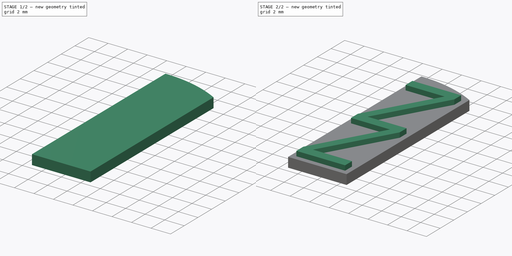
[diagram: build sequence overview — one tinted view per stage of 2, left to right]
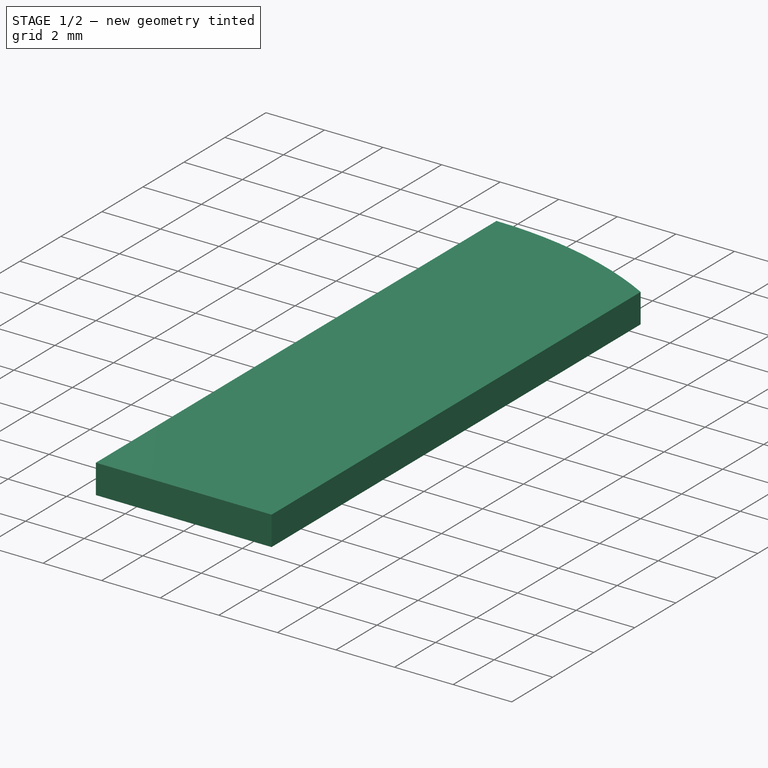
[diagram: stage 1 of 2 — iso view after this stage's code; geometry added in this stage tinted green]
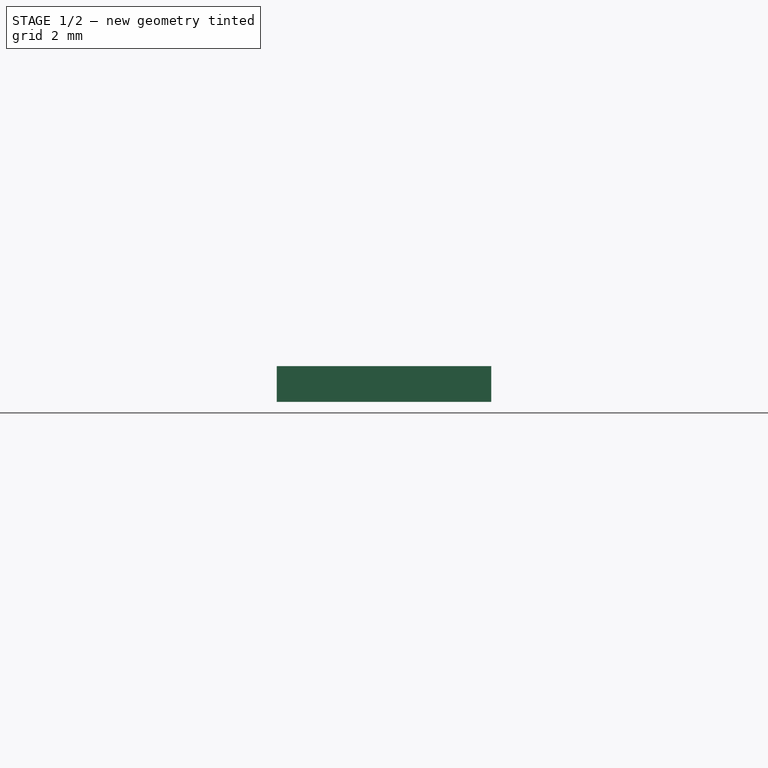
[diagram: stage 1 of 2 — front view after this stage's code; geometry added in this stage tinted green]
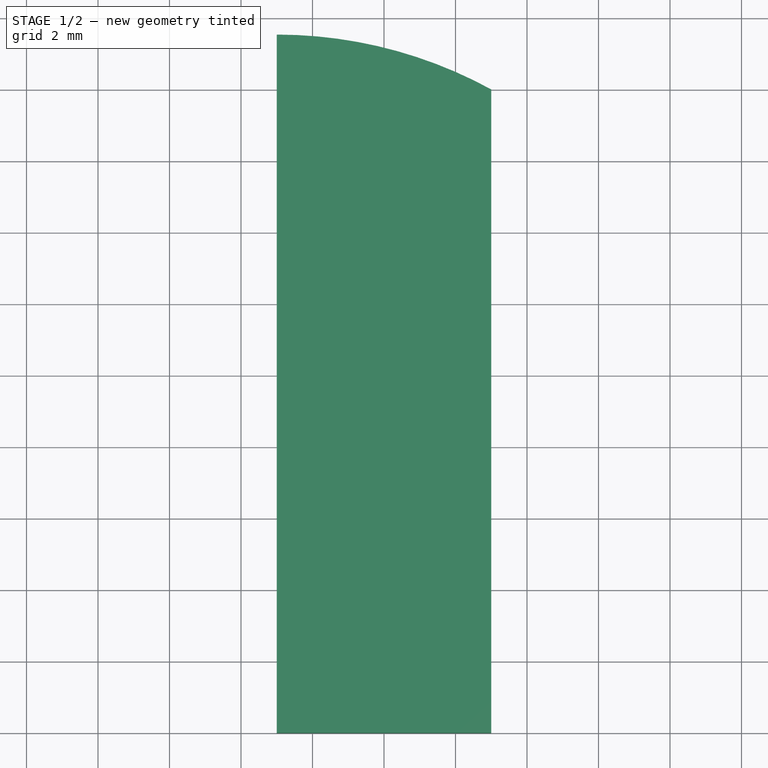
[diagram: stage 1 of 2 — top view after this stage's code; geometry added in this stage tinted green]
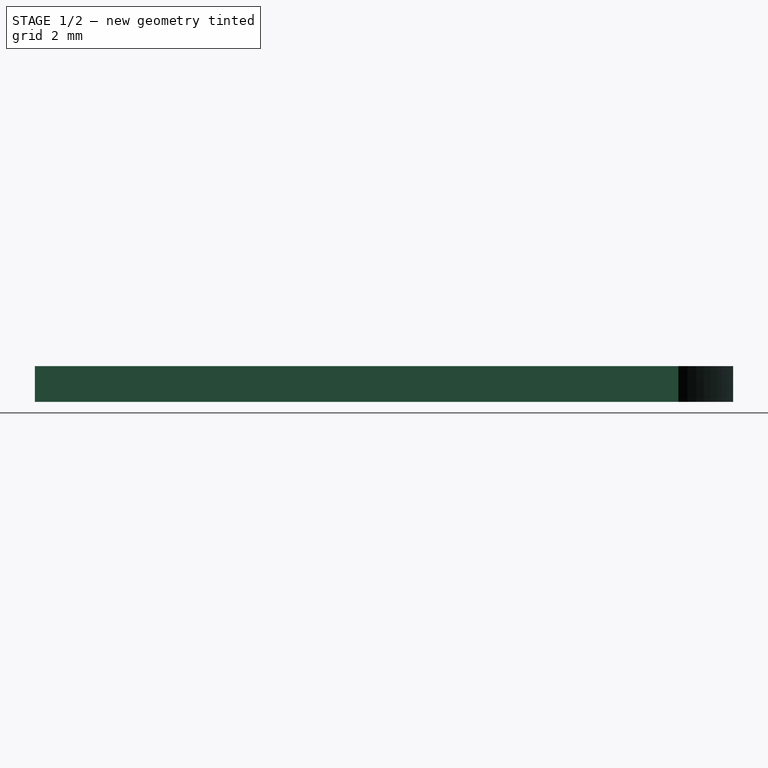
[diagram: stage 1 of 2 — right view after this stage's code; geometry added in this stage tinted green]
FCSTD DOCUMENT  (FreeCAD 0.16R6698 (Git))
Label: 1_2_Volet_Porte_Fenetre_Gauche
License: All rights reserved
LicenseURL: http://fr.wikipedia.org/wiki/<copyright redacted>
objects: Sketcher::SketchObject×2, PartDesign::Pad×2
note: 6 computed .brp shape members not serialized (recipe doc carries the construction recipe); baked Part::Feature solids carry a one-line shape summary decoded from their .brp

FEATURE [Sketcher::SketchObject] Sketch
  sketch-geometry (4):
    g0: LineSegment StartX=-3 StartY=-16 StartZ=0 EndX=3 EndY=-16 EndZ=0
    g1: LineSegment StartX=-3 StartY=-16 StartZ=0 EndX=-3 EndY=3.53414 EndZ=0
    g2: LineSegment StartX=3 StartY=-16 StartZ=0 EndX=3 EndY=2 EndZ=0
    g3: ArcOfCircle CenterX=-3 CenterY=-8.96586 CenterZ=0 NormalX=0 NormalY=0 NormalZ=1 Radius=12.5 StartAngle=1.07014 EndAngle=1.5708
  constraints (13):
    c: Horizontal(g0)
    c: Coincident(g1,g0)
    c: Vertical(g1)
    c: DistanceX(g0,g0) = 6
    c: Coincident(g2,g0)
    c: Vertical(g2)
    c: PointOnObject(g3,g1)
    c: Coincident(g3,g2)
    c: Coincident(g3,g1)
    c: DistanceY(g0,g-1) = 16
    c: DistanceY(g0,g2) = 18
    c: Radius(g3) = 12.5
    c: Symmetric(g0,g0,g-2)
FEATURE [PartDesign::Pad] Pad
  Length = 1
  Length2 = 100
  Sketch = -> Sketch
  Type = 0
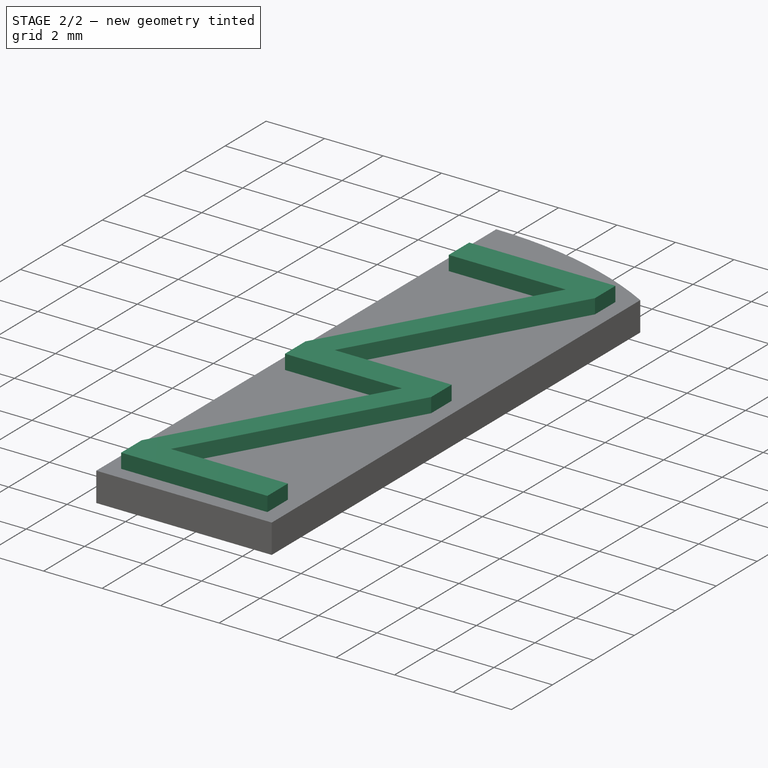
[diagram: stage 2 of 2 — iso view after this stage's code; geometry added in this stage tinted green]
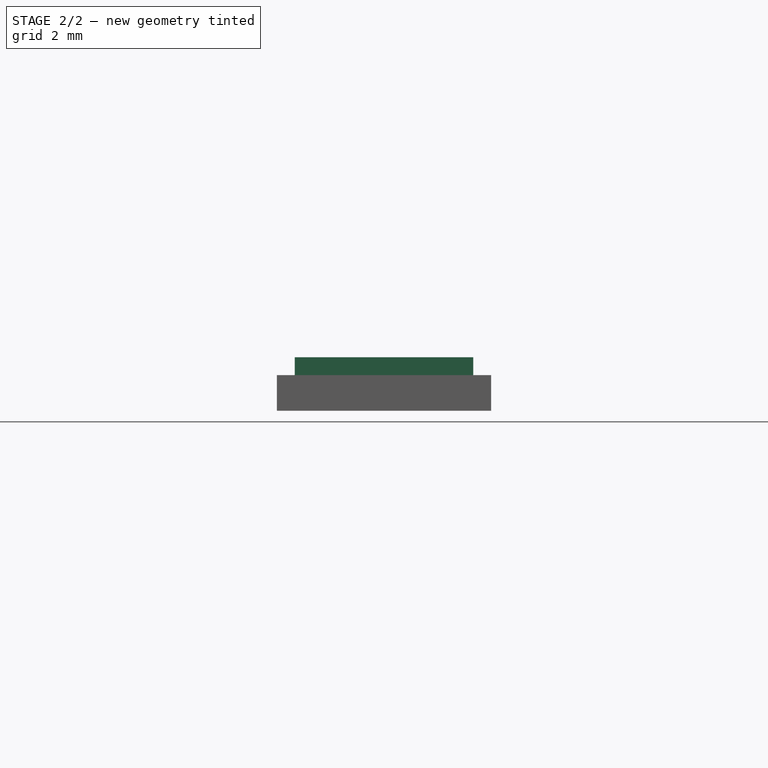
[diagram: stage 2 of 2 — front view after this stage's code; geometry added in this stage tinted green]
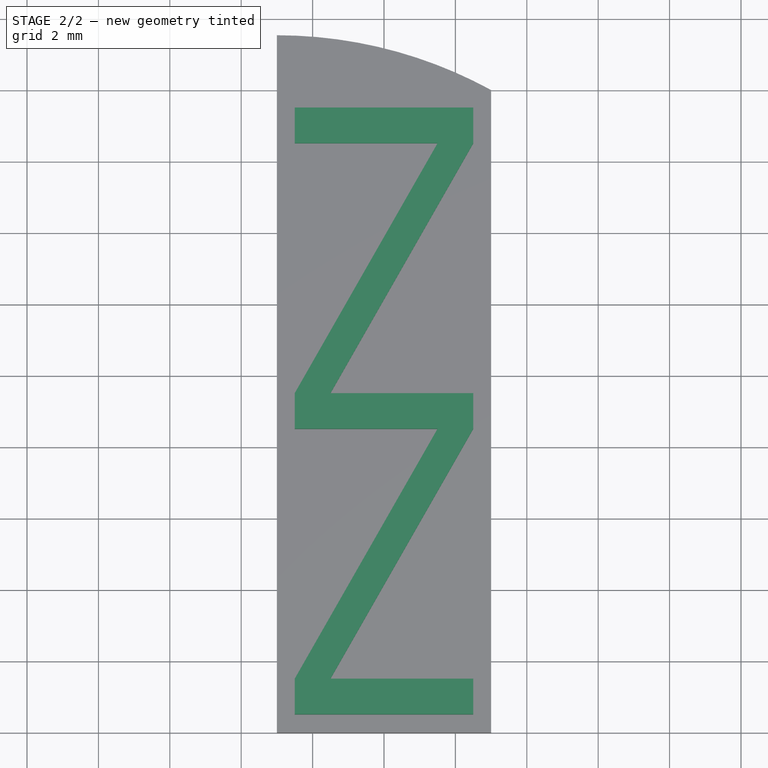
[diagram: stage 2 of 2 — top view after this stage's code; geometry added in this stage tinted green]
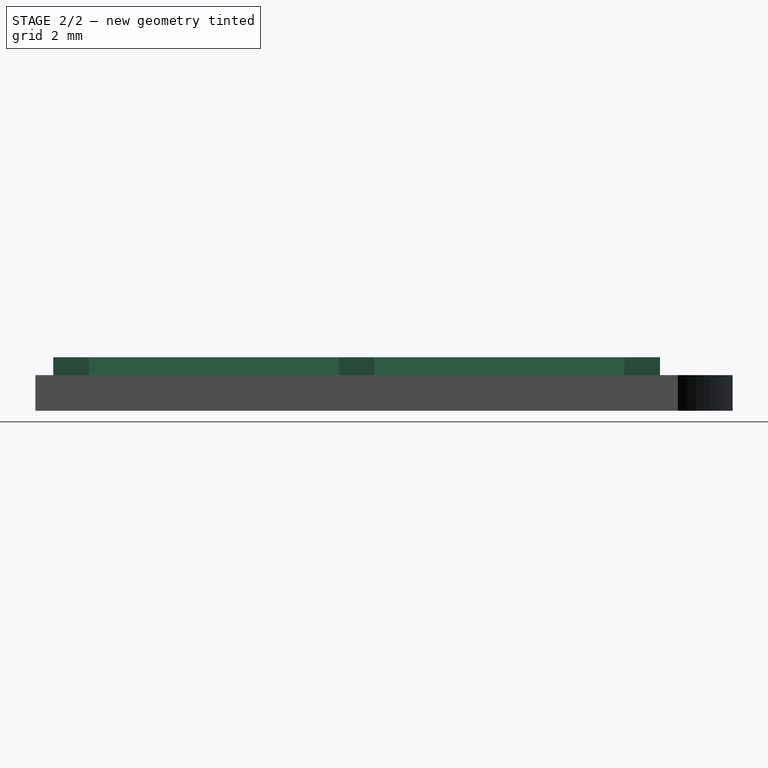
[diagram: stage 2 of 2 — right view after this stage's code; geometry added in this stage tinted green]
FEATURE [Sketcher::SketchObject] Sketch001
  Placement = pos=(0,0,1) rot=(0,0,1;0rad)
  Support = -> Pad [Face6]
  sketch-geometry (16):
    g0: LineSegment StartX=2.5 StartY=1.5 StartZ=0 EndX=-2.5 EndY=1.5 EndZ=0
    g1: LineSegment StartX=2.5 StartY=-15.5 StartZ=0 EndX=-2.5 EndY=-15.5 EndZ=0
    g2: LineSegment StartX=2.5 StartY=1.5 StartZ=0 EndX=2.5 EndY=0.5 EndZ=0
    g3: LineSegment StartX=-2.5 StartY=-6.5 StartZ=0 EndX=-2.5 EndY=-7.5 EndZ=0
    g4: LineSegment StartX=2.5 StartY=-15.5 StartZ=0 EndX=2.5 EndY=-14.5 EndZ=0
    g5: LineSegment StartX=-2.5 StartY=-7.5 StartZ=0 EndX=1.5 EndY=-7.5 EndZ=0
    g6: LineSegment StartX=-2.5 StartY=-15.5 StartZ=0 EndX=-2.5 EndY=-14.5 EndZ=0
    g7: LineSegment StartX=2.5 StartY=-7.5 StartZ=0 EndX=2.5 EndY=-6.5 EndZ=0
    g8: LineSegment StartX=2.5 StartY=-6.5 StartZ=0 EndX=-1.5 EndY=-6.5 EndZ=0
    g9: LineSegment StartX=-2.5 StartY=1.5 StartZ=0 EndX=-2.5 EndY=0.5 EndZ=0
    g10: LineSegment StartX=-2.5 StartY=0.5 StartZ=0 EndX=1.5 EndY=0.5 EndZ=0
    g11: LineSegment StartX=2.5 StartY=-14.5 StartZ=0 EndX=-1.5 EndY=-14.5 EndZ=0
    g12: LineSegment StartX=-2.5 StartY=-6.5 StartZ=0 EndX=1.5 EndY=0.5 EndZ=0
    g13: LineSegment StartX=-1.5 StartY=-6.5 StartZ=0 EndX=2.5 EndY=0.5 EndZ=0
    g14: LineSegment StartX=-2.5 StartY=-14.5 StartZ=0 EndX=1.5 EndY=-7.5 EndZ=0
    g15: LineSegment StartX=-1.5 StartY=-14.5 StartZ=0 EndX=2.5 EndY=-7.5 EndZ=0
  constraints (48):
    c: Horizontal(g0)
    c: Horizontal(g1)
    c: Coincident(g2,g0)
    c: Vertical(g2)
    c: Vertical(g3)
    c: Coincident(g4,g1)
    c: Vertical(g4)
    c: Coincident(g5,g3)
    c: Horizontal(g5)
    c: Coincident(g6,g1)
    c: Vertical(g6)
    c: Vertical(g7)
    c: Coincident(g8,g7)
    c: Horizontal(g8)
    c: Coincident(g9,g0)
    c: Vertical(g9)
    c: Coincident(g10,g9)
    c: Horizontal(g10)
    c: Equal(g9,g2)
    c: Equal(g2,g7)
    c: Equal(g7,g3)
    c: Equal(g3,g6)
    c: Equal(g6,g4)
    c: DistanceY(g9,g0) = 1
    c: Coincident(g11,g4)
    c: Horizontal(g11)
    c: Equal(g11,g5)
    c: Equal(g5,g10)
    c: Equal(g10,g8)
    c: DistanceX(g0,g0) = 5
    c: DistanceX(g9,g10) = 4
    c: Coincident(g12,g3)
    c: Coincident(g12,g10)
    c: Coincident(g13,g8)
    c: Coincident(g13,g2)
    c: Coincident(g14,g6)
    c: Coincident(g14,g5)
    c: Coincident(g15,g11)
    c: Coincident(g15,g7)
    c: Equal(g1,g0)
    c: DistanceY(g5,g7) = 0
    c: DistanceX(g-1,g9) = -2.5
    c: DistanceX(g-1,g4) = 2.5
    c: DistanceX(g-1,g3) = -2.5
    c: DistanceY(g-1,g3) = -6.5
    c: DistanceX(g-1,g7) = 2.5
    c: DistanceY(g6,g3) = 7
    c: DistanceY(g3,g9) = 7
FEATURE [PartDesign::Pad] Pad001
  Length = 0.5
  Length2 = 100
  Sketch = -> Sketch001
  Type = 0
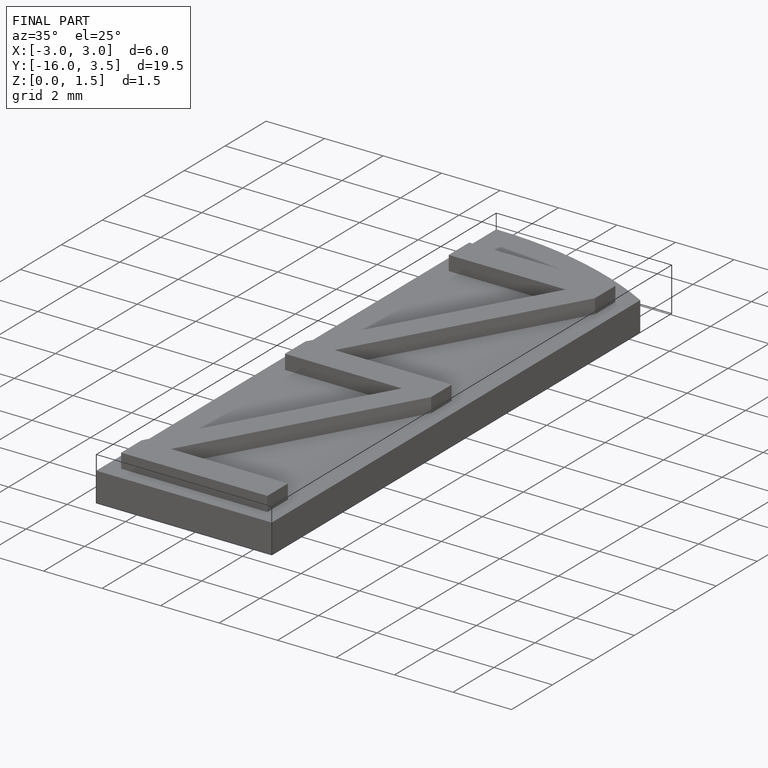
[diagram: finished part — iso view with bounding-box wireframe]
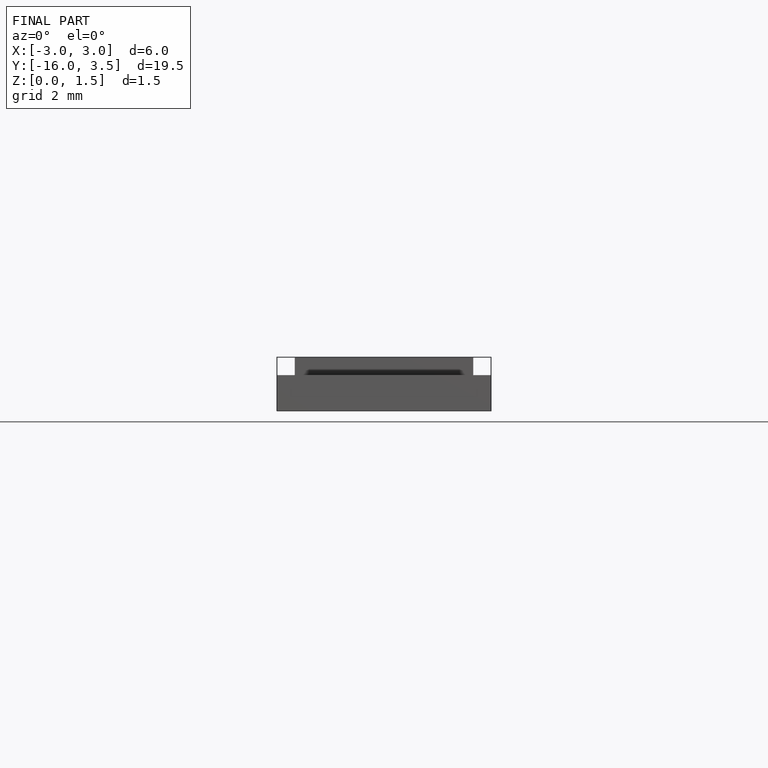
[diagram: finished part — front view with bounding-box wireframe]
